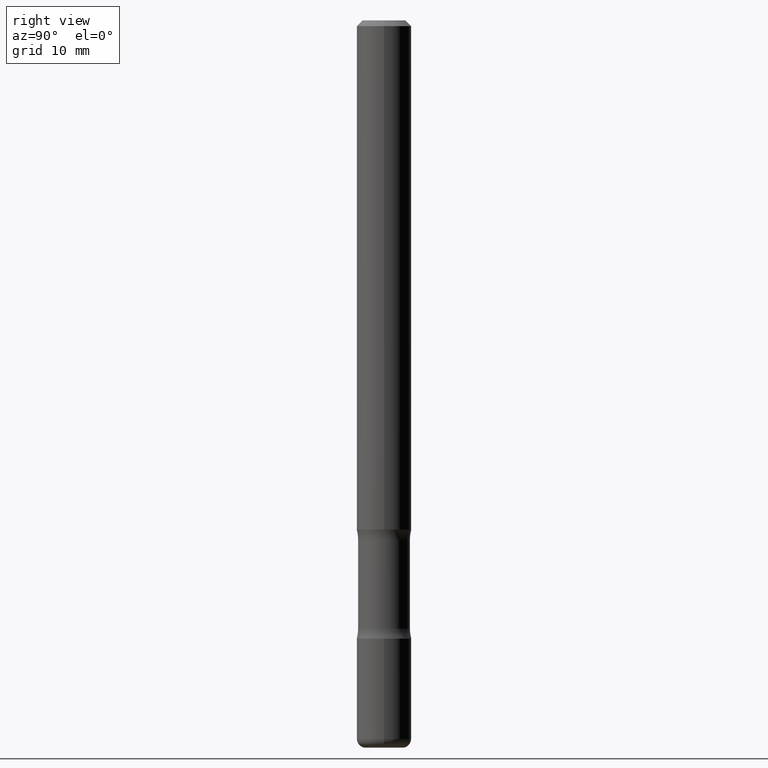
[diagram: clean part render]
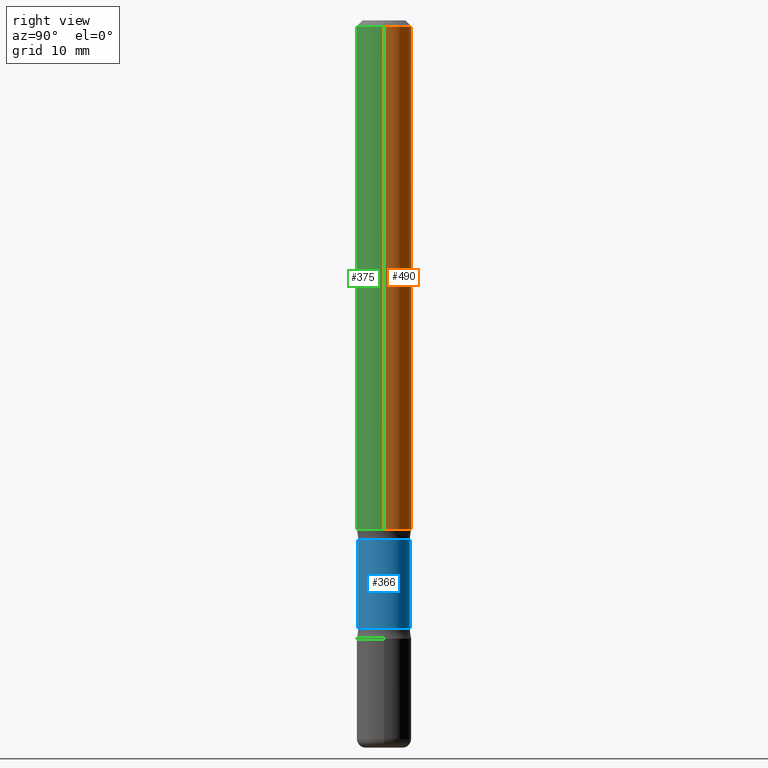
[diagram: same view with three faces highlighted in distinct colors, each labeled with its STEP entity id]
A machine part, right view with three faces highlighted in distinct colors.
Their STEP definitions:

[orange] entity #490 — the highlighted cylindrical surface (edge-blend (fillet) strip) has radius 2.3812 mm, axis along (-0, 0, 1).
#3 = AXIS2_PLACEMENT_3D ( 'NONE', #451, #271, #225 ) ;
#18 = DIRECTION ( 'NONE',  ( -2.445468806185136877E-29, 3.491481338843145188E-15, 1.000000000000000000 ) ) ;
#30 = CYLINDRICAL_SURFACE ( 'NONE', #339, 0.09374999999999991673 ) ;
#39 = CIRCLE ( 'NONE', #3, 0.09375000000000004163 ) ;
#50 = EDGE_CURVE ( 'NONE', #172, #341, #197, .T. ) ;
#59 = CARTESIAN_POINT ( 'NONE',  ( -0.09374999999999981959, 5.848231242562233185E-16, -0.02000000000000001776 ) ) ;
#76 = DIRECTION ( 'NONE',  ( -2.445468806185136597E-29, 3.491481338843145583E-15, 1.000000000000000000 ) ) ;
#80 = DIRECTION ( 'NONE',  ( 1.000000000000000000, -6.982962677686266711E-15, 4.876176775795935793E-29 ) ) ;
#86 = EDGE_LOOP ( 'NONE', ( #526, #507, #132, #193 ) ) ;
#105 = VECTOR ( 'NONE', #279, 39.37007874015748143 ) ;
#132 = ORIENTED_EDGE ( 'NONE', *, *, #136, .F. ) ;
#136 = EDGE_CURVE ( 'NONE', #388, #341, #273, .T. ) ;
#141 = LINE ( 'NONE', #190, #191 ) ;
#159 = FACE_OUTER_BOUND ( 'NONE', #86, .T. ) ;
#164 = VERTEX_POINT ( 'NONE', #535 ) ;
#172 = VERTEX_POINT ( 'NONE', #244 ) ;
#190 = CARTESIAN_POINT ( 'NONE',  ( 0.09374999999999991673, -6.546527510330869125E-16, 4.571415727308685602E-30 ) ) ;
#191 = VECTOR ( 'NONE', #18, 39.37007874015748143 ) ;
#193 = ORIENTED_EDGE ( 'NONE', *, *, #283, .F. ) ;
#197 = LINE ( 'NONE', #498, #105 ) ;
#225 = DIRECTION ( 'NONE',  ( 1.000000000000000000, -6.982962677686269866E-15, 0.000000000000000000 ) ) ;
#241 = CARTESIAN_POINT ( 'NONE',  ( 4.890937612370276662E-31, -6.982962677686296539E-17, -0.02000000000000001776 ) ) ;
#244 = CARTESIAN_POINT ( 'NONE',  ( -0.09375000000000004163, -2.423827170101085722E-15, -1.750000000000000000 ) ) ;
#271 = DIRECTION ( 'NONE',  ( -2.445468806185136597E-29, 3.491481338843145583E-15, 1.000000000000000000 ) ) ;
#273 = CIRCLE ( 'NONE', #511, 0.09374999999999981959 ) ;
#279 = DIRECTION ( 'NONE',  ( -2.445468806185136877E-29, 3.491481338843145188E-15, 1.000000000000000000 ) ) ;
#283 = EDGE_CURVE ( 'NONE', #164, #388, #141, .T. ) ;
#304 = EDGE_CURVE ( 'NONE', #164, #172, #39, .T. ) ;
#314 = DIRECTION ( 'NONE',  ( -2.445468806185136597E-29, 3.491481338843145583E-15, 1.000000000000000000 ) ) ;
#333 = CARTESIAN_POINT ( 'NONE',  ( 0.000000000000000000, 0.000000000000000000, 0.000000000000000000 ) ) ;
#339 = AXIS2_PLACEMENT_3D ( 'NONE', #333, #76, #80 ) ;
#341 = VERTEX_POINT ( 'NONE', #59 ) ;
#388 = VERTEX_POINT ( 'NONE', #389 ) ;
#389 = CARTESIAN_POINT ( 'NONE',  ( 0.09374999999999981959, -7.130013140679428044E-16, -0.02000000000000001776 ) ) ;
#422 = DIRECTION ( 'NONE',  ( 1.000000000000000000, -6.982962677686267499E-15, 0.000000000000000000 ) ) ;
#451 = CARTESIAN_POINT ( 'NONE',  ( 4.279570410823988484E-29, -6.110092342975504671E-15, -1.750000000000000000 ) ) ;
#490 = ADVANCED_FACE ( 'NONE', ( #159 ), #30, .T. ) ;
#498 = CARTESIAN_POINT ( 'NONE',  ( -0.09374999999999991673, 6.661338147750933326E-16, -4.611501647113969791E-30 ) ) ;
#507 = ORIENTED_EDGE ( 'NONE', *, *, #50, .T. ) ;
#511 = AXIS2_PLACEMENT_3D ( 'NONE', #241, #314, #422 ) ;
#526 = ORIENTED_EDGE ( 'NONE', *, *, #304, .T. ) ;
#535 = CARTESIAN_POINT ( 'NONE',  ( 0.09375000000000004163, -6.764745094008592175E-15, -1.750000000000000000 ) ) ;

[blue] entity #366 — the highlighted cylindrical surface (edge-blend (fillet) strip) has radius 2.2622 mm, axis along (0, -0, -1).
#26 = CIRCLE ( 'NONE', #126, 0.08906249999999993339 ) ;
#34 = CARTESIAN_POINT ( 'NONE',  ( 6.219201134814940684E-16, 0.08906249999999125977, -2.500000000000000444 ) ) ;
#43 = ORIENTED_EDGE ( 'NONE', *, *, #529, .F. ) ;
#47 = CYLINDRICAL_SURFACE ( 'NONE', #249, 0.08906249999999993339 ) ;
#64 = CARTESIAN_POINT ( 'NONE',  ( 5.110032292609207884E-29, -7.306245973522905960E-15, -2.091089789977795821 ) ) ;
#65 = EDGE_CURVE ( 'NONE', #224, #408, #284, .T. ) ;
#73 = EDGE_CURVE ( 'NONE', #324, #224, #315, .T. ) ;
#126 = AXIS2_PLACEMENT_3D ( 'NONE', #64, #362, #487 ) ;
#162 = LINE ( 'NONE', #34, #439 ) ;
#169 = EDGE_LOOP ( 'NONE', ( #397, #423, #349, #43 ) ) ;
#186 = DIRECTION ( 'NONE',  ( 6.982962677686265133E-15, 1.000000000000000000, -3.067338098149349877E-15 ) ) ;
#201 = VECTOR ( 'NONE', #233, 39.37007874015748143 ) ;
#203 = VERTEX_POINT ( 'NONE', #364 ) ;
#204 = EDGE_CURVE ( 'NONE', #203, #408, #26, .T. ) ;
#211 = CARTESIAN_POINT ( 'NONE',  ( -6.270923951087521301E-16, -0.08906250000000723310, -2.091089789977795377 ) ) ;
#215 = CARTESIAN_POINT ( 'NONE',  ( 6.154174857873591467E-29, -8.670700971497045879E-15, -2.500000000000000000 ) ) ;
#224 = VERTEX_POINT ( 'NONE', #495 ) ;
#228 = CARTESIAN_POINT ( 'NONE',  ( 6.219201134814759246E-16, 0.08906249999999366063, -1.783910210022204845 ) ) ;
#233 = DIRECTION ( 'NONE',  ( 2.553476385947133355E-29, -3.336808337214295667E-15, -1.000000000000000000 ) ) ;
#248 = DIRECTION ( 'NONE',  ( 2.553476385947133355E-29, -3.336808337214295667E-15, -1.000000000000000000 ) ) ;
#249 = AXIS2_PLACEMENT_3D ( 'NONE', #215, #503, #378 ) ;
#284 = LINE ( 'NONE', #318, #201 ) ;
#315 = CIRCLE ( 'NONE', #346, 0.08906249999999994726 ) ;
#318 = CARTESIAN_POINT ( 'NONE',  ( -6.110131029264649859E-16, -0.08906250000000860700, -2.499999999999999556 ) ) ;
#324 = VERTEX_POINT ( 'NONE', #228 ) ;
#346 = AXIS2_PLACEMENT_3D ( 'NONE', #376, #414, #186 ) ;
#349 = ORIENTED_EDGE ( 'NONE', *, *, #204, .F. ) ;
#362 = DIRECTION ( 'NONE',  ( 2.553476385947133355E-29, -3.336808337214295667E-15, -1.000000000000000000 ) ) ;
#364 = CARTESIAN_POINT ( 'NONE',  ( 6.219201134814836160E-16, 0.08906249999999261979, -2.091089789977795821 ) ) ;
#366 = ADVANCED_FACE ( 'NONE', ( #444 ), #47, .T. ) ;
#376 = CARTESIAN_POINT ( 'NONE',  ( 4.325656488947447574E-29, -6.281246590105103764E-15, -1.783910210022204623 ) ) ;
#378 = DIRECTION ( 'NONE',  ( 6.982962677686265133E-15, 1.000000000000000000, -6.134676196298701332E-15 ) ) ;
#397 = ORIENTED_EDGE ( 'NONE', *, *, #73, .T. ) ;
#408 = VERTEX_POINT ( 'NONE', #211 ) ;
#414 = DIRECTION ( 'NONE',  ( 2.553476385947133355E-29, -3.336808337214295667E-15, -1.000000000000000000 ) ) ;
#423 = ORIENTED_EDGE ( 'NONE', *, *, #65, .T. ) ;
#439 = VECTOR ( 'NONE', #248, 39.37007874015748143 ) ;
#444 = FACE_OUTER_BOUND ( 'NONE', #169, .T. ) ;
#487 = DIRECTION ( 'NONE',  ( 6.982962677686265133E-15, 1.000000000000000000, -3.067338098149350666E-15 ) ) ;
#495 = CARTESIAN_POINT ( 'NONE',  ( -6.270923951087611034E-16, -0.08906250000000623390, -1.783910210022204401 ) ) ;
#503 = DIRECTION ( 'NONE',  ( 2.553476385947133355E-29, -3.336808337214295667E-15, -1.000000000000000000 ) ) ;
#529 = EDGE_CURVE ( 'NONE', #324, #203, #162, .T. ) ;

[green] entity #375 — the highlighted cylindrical surface (edge-blend (fillet) strip) has radius 2.3812 mm, axis along (-0, 0, 1).
#18 = DIRECTION ( 'NONE',  ( -2.445468806185136877E-29, 3.491481338843145188E-15, 1.000000000000000000 ) ) ;
#25 = DIRECTION ( 'NONE',  ( 1.000000000000000000, -6.982962677686266711E-15, 4.876176775795935793E-29 ) ) ;
#28 = DIRECTION ( 'NONE',  ( -2.445468806185136597E-29, 3.491481338843145583E-15, 1.000000000000000000 ) ) ;
#50 = EDGE_CURVE ( 'NONE', #172, #341, #197, .T. ) ;
#59 = CARTESIAN_POINT ( 'NONE',  ( -0.09374999999999981959, 5.848231242562233185E-16, -0.02000000000000001776 ) ) ;
#69 = DIRECTION ( 'NONE',  ( 1.000000000000000000, -6.982962677686269866E-15, 0.000000000000000000 ) ) ;
#97 = CARTESIAN_POINT ( 'NONE',  ( 4.890937612370276662E-31, -6.982962677686296539E-17, -0.02000000000000001776 ) ) ;
#101 = CARTESIAN_POINT ( 'NONE',  ( 4.279570410823988484E-29, -6.110092342975504671E-15, -1.750000000000000000 ) ) ;
#105 = VECTOR ( 'NONE', #279, 39.37007874015748143 ) ;
#141 = LINE ( 'NONE', #190, #191 ) ;
#164 = VERTEX_POINT ( 'NONE', #535 ) ;
#172 = VERTEX_POINT ( 'NONE', #244 ) ;
#176 = ORIENTED_EDGE ( 'NONE', *, *, #219, .F. ) ;
#190 = CARTESIAN_POINT ( 'NONE',  ( 0.09374999999999991673, -6.546527510330869125E-16, 4.571415727308685602E-30 ) ) ;
#191 = VECTOR ( 'NONE', #18, 39.37007874015748143 ) ;
#197 = LINE ( 'NONE', #498, #105 ) ;
#219 = EDGE_CURVE ( 'NONE', #341, #388, #462, .T. ) ;
#232 = DIRECTION ( 'NONE',  ( 1.000000000000000000, -6.982962677686267499E-15, 0.000000000000000000 ) ) ;
#244 = CARTESIAN_POINT ( 'NONE',  ( -0.09375000000000004163, -2.423827170101085722E-15, -1.750000000000000000 ) ) ;
#268 = EDGE_CURVE ( 'NONE', #172, #164, #447, .T. ) ;
#278 = DIRECTION ( 'NONE',  ( -2.445468806185136597E-29, 3.491481338843145583E-15, 1.000000000000000000 ) ) ;
#279 = DIRECTION ( 'NONE',  ( -2.445468806185136877E-29, 3.491481338843145188E-15, 1.000000000000000000 ) ) ;
#281 = AXIS2_PLACEMENT_3D ( 'NONE', #101, #278, #69 ) ;
#283 = EDGE_CURVE ( 'NONE', #164, #388, #141, .T. ) ;
#328 = AXIS2_PLACEMENT_3D ( 'NONE', #97, #413, #232 ) ;
#329 = CYLINDRICAL_SURFACE ( 'NONE', #358, 0.09374999999999991673 ) ;
#341 = VERTEX_POINT ( 'NONE', #59 ) ;
#358 = AXIS2_PLACEMENT_3D ( 'NONE', #420, #28, #25 ) ;
#375 = ADVANCED_FACE ( 'NONE', ( #499 ), #329, .T. ) ;
#388 = VERTEX_POINT ( 'NONE', #389 ) ;
#389 = CARTESIAN_POINT ( 'NONE',  ( 0.09374999999999981959, -7.130013140679428044E-16, -0.02000000000000001776 ) ) ;
#406 = ORIENTED_EDGE ( 'NONE', *, *, #268, .T. ) ;
#413 = DIRECTION ( 'NONE',  ( -2.445468806185136597E-29, 3.491481338843145583E-15, 1.000000000000000000 ) ) ;
#420 = CARTESIAN_POINT ( 'NONE',  ( 0.000000000000000000, 0.000000000000000000, 0.000000000000000000 ) ) ;
#425 = EDGE_LOOP ( 'NONE', ( #554, #406, #517, #176 ) ) ;
#447 = CIRCLE ( 'NONE', #281, 0.09375000000000004163 ) ;
#462 = CIRCLE ( 'NONE', #328, 0.09374999999999981959 ) ;
#498 = CARTESIAN_POINT ( 'NONE',  ( -0.09374999999999991673, 6.661338147750933326E-16, -4.611501647113969791E-30 ) ) ;
#499 = FACE_OUTER_BOUND ( 'NONE', #425, .T. ) ;
#517 = ORIENTED_EDGE ( 'NONE', *, *, #283, .T. ) ;
#535 = CARTESIAN_POINT ( 'NONE',  ( 0.09375000000000004163, -6.764745094008592175E-15, -1.750000000000000000 ) ) ;
#554 = ORIENTED_EDGE ( 'NONE', *, *, #50, .F. ) ;